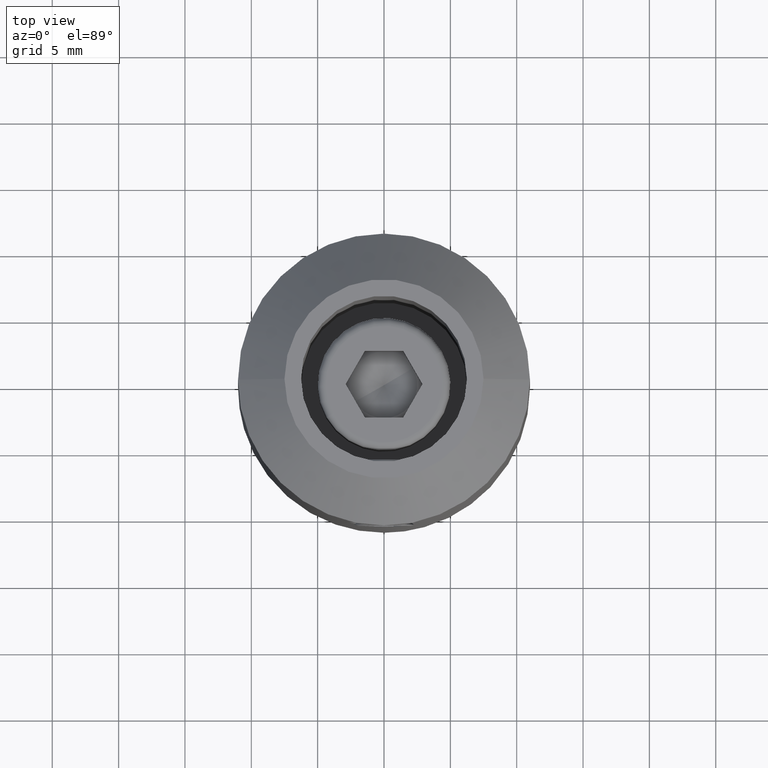
[diagram: clean part render]
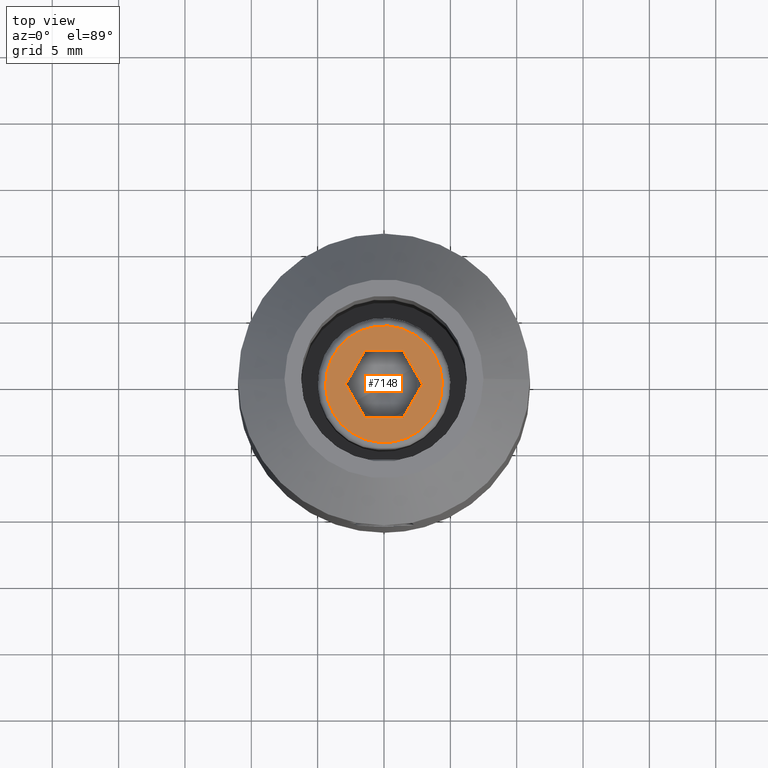
[diagram: same view with one face highlighted and labeled with its STEP entity id]
A machine part, top view. The second image highlights one B-rep face of the part: STEP entity #7148.
In plain terms, the highlighted planar face has unit normal (0, 0, 1).
Its self-contained STEP definition (entity closure, byte-faithful):
#342 = VECTOR ( 'NONE', #849, 1000.000000000000114 ) ;
#704 = ORIENTED_EDGE ( 'NONE', *, *, #20246, .T. ) ;
#849 = DIRECTION ( 'NONE',  ( 0.000000000000000000, -0.5000000000000007772, -0.8660254037844381525 ) ) ;
#1151 = CARTESIAN_POINT ( 'NONE',  ( 0.000000000000000000, -2.898298351331968892, 2.602085213965210642E-15 ) ) ;
#2127 = VERTEX_POINT ( 'NONE', #8614 ) ;
#2130 = VERTEX_POINT ( 'NONE', #11797 ) ;
#2936 = CARTESIAN_POINT ( 'NONE',  ( 0.000000000000000000, 0.000000000000000000, 0.000000000000000000 ) ) ;
#3158 = EDGE_LOOP ( 'NONE', ( #19856, #16531, #4524, #704, #18686, #7302 ) ) ;
#3166 = CARTESIAN_POINT ( 'NONE',  ( 0.000000000000000000, -9.281464485866309625E-15, 4.400000000000054534 ) ) ;
#3989 = EDGE_CURVE ( 'NONE', #16485, #20602, #8924, .T. ) ;
#4524 = ORIENTED_EDGE ( 'NONE', *, *, #9858, .T. ) ;
#4615 = AXIS2_PLACEMENT_3D ( 'NONE', #5003, #4926, #16569 ) ;
#4618 = EDGE_CURVE ( 'NONE', #20602, #12205, #10981, .T. ) ;
#4926 = DIRECTION ( 'NONE',  ( -1.000000000000000000, 0.000000000000000000, 0.000000000000000000 ) ) ;
#5003 = CARTESIAN_POINT ( 'NONE',  ( 0.000000000000000000, 0.000000000000000000, 0.000000000000000000 ) ) ;
#5025 = LINE ( 'NONE', #1151, #10213 ) ;
#5324 = VERTEX_POINT ( 'NONE', #3166 ) ;
#5445 = CIRCLE ( 'NONE', #8396, 4.400000000000054534 ) ;
#5725 = LINE ( 'NONE', #8278, #14023 ) ;
#6980 = DIRECTION ( 'NONE',  ( -1.000000000000000000, 0.000000000000000000, 0.000000000000000000 ) ) ;
#7148 = ADVANCED_FACE ( 'NONE', ( #20919, #8809 ), #19603, .T. ) ;
#7302 = ORIENTED_EDGE ( 'NONE', *, *, #3989, .F. ) ;
#7568 = AXIS2_PLACEMENT_3D ( 'NONE', #20349, #6980, #20070 ) ;
#7760 = ORIENTED_EDGE ( 'NONE', *, *, #7810, .T. ) ;
#7810 = EDGE_CURVE ( 'NONE', #5324, #2130, #5445, .T. ) ;
#8208 = DIRECTION ( 'NONE',  ( 0.000000000000000000, 1.000000000000000000, 1.387778780781426940E-15 ) ) ;
#8278 = CARTESIAN_POINT ( 'NONE',  ( 0.000000000000000000, -1.449149175665980227, 2.510000000000042419 ) ) ;
#8396 = AXIS2_PLACEMENT_3D ( 'NONE', #2936, #11302, #17725 ) ;
#8596 = CARTESIAN_POINT ( 'NONE',  ( 0.000000000000000000, 1.449149175665985556, 2.510000000000045972 ) ) ;
#8614 = CARTESIAN_POINT ( 'NONE',  ( 0.000000000000000000, -2.898298351331968892, 2.602085213965210642E-15 ) ) ;
#8809 = FACE_OUTER_BOUND ( 'NONE', #11331, .T. ) ;
#8924 = LINE ( 'NONE', #20498, #342 ) ;
#8972 = VECTOR ( 'NONE', #21015, 1000.000000000000114 ) ;
#9305 = VECTOR ( 'NONE', #18462, 1000.000000000000114 ) ;
#9331 = EDGE_CURVE ( 'NONE', #2130, #5324, #18859, .T. ) ;
#9502 = LINE ( 'NONE', #15864, #8972 ) ;
#9816 = CARTESIAN_POINT ( 'NONE',  ( 0.000000000000000000, 1.449149175665950917, -2.510000000000003784 ) ) ;
#9858 = EDGE_CURVE ( 'NONE', #13968, #2127, #13155, .T. ) ;
#10213 = VECTOR ( 'NONE', #21210, 1000.000000000000227 ) ;
#10232 = DIRECTION ( 'NONE',  ( 0.000000000000000000, -1.000000000000000000, -1.332267629550170494E-15 ) ) ;
#10712 = VECTOR ( 'NONE', #10232, 1000.000000000000000 ) ;
#10981 = LINE ( 'NONE', #18446, #10712 ) ;
#11302 = DIRECTION ( 'NONE',  ( -1.000000000000000000, 0.000000000000000000, 0.000000000000000000 ) ) ;
#11331 = EDGE_LOOP ( 'NONE', ( #7760, #13903 ) ) ;
#11748 = CARTESIAN_POINT ( 'NONE',  ( 0.000000000000000000, -1.449149175665980227, 2.510000000000042419 ) ) ;
#11797 = CARTESIAN_POINT ( 'NONE',  ( 0.000000000000000000, 1.048987560550177941E-14, -4.400000000000000355 ) ) ;
#12004 = EDGE_CURVE ( 'NONE', #16485, #14811, #9502, .T. ) ;
#12205 = VERTEX_POINT ( 'NONE', #18183 ) ;
#13155 = LINE ( 'NONE', #15145, #9305 ) ;
#13903 = ORIENTED_EDGE ( 'NONE', *, *, #9331, .T. ) ;
#13968 = VERTEX_POINT ( 'NONE', #11748 ) ;
#14023 = VECTOR ( 'NONE', #8208, 1000.000000000000000 ) ;
#14175 = CARTESIAN_POINT ( 'NONE',  ( 0.000000000000000000, 2.898298351331957790, -2.385244779468109755E-15 ) ) ;
#14811 = VERTEX_POINT ( 'NONE', #8596 ) ;
#15145 = CARTESIAN_POINT ( 'NONE',  ( 0.000000000000000000, -1.449149175665980227, 2.510000000000042419 ) ) ;
#15864 = CARTESIAN_POINT ( 'NONE',  ( 0.000000000000000000, 2.898298351331957790, -2.385244779468109755E-15 ) ) ;
#16485 = VERTEX_POINT ( 'NONE', #14175 ) ;
#16531 = ORIENTED_EDGE ( 'NONE', *, *, #16845, .F. ) ;
#16569 = DIRECTION ( 'NONE',  ( 0.000000000000000000, -2.109423746787771394E-15, 1.000000000000000000 ) ) ;
#16845 = EDGE_CURVE ( 'NONE', #13968, #14811, #5725, .T. ) ;
#17725 = DIRECTION ( 'NONE',  ( 0.000000000000000000, -2.109423746787771394E-15, 1.000000000000000000 ) ) ;
#18183 = CARTESIAN_POINT ( 'NONE',  ( 0.000000000000000000, -1.449149175665998657, -2.510000000000045972 ) ) ;
#18446 = CARTESIAN_POINT ( 'NONE',  ( 0.000000000000000000, 1.449149175665950917, -2.510000000000003784 ) ) ;
#18462 = DIRECTION ( 'NONE',  ( -0.000000000000000000, -0.5000000000000007772, -0.8660254037844381525 ) ) ;
#18686 = ORIENTED_EDGE ( 'NONE', *, *, #4618, .F. ) ;
#18859 = CIRCLE ( 'NONE', #7568, 4.400000000000054534 ) ;
#19603 = PLANE ( 'NONE',  #4615 ) ;
#19856 = ORIENTED_EDGE ( 'NONE', *, *, #12004, .T. ) ;
#20070 = DIRECTION ( 'NONE',  ( 0.000000000000000000, -2.109423746787771394E-15, 1.000000000000000000 ) ) ;
#20246 = EDGE_CURVE ( 'NONE', #2127, #12205, #5025, .T. ) ;
#20349 = CARTESIAN_POINT ( 'NONE',  ( 0.000000000000000000, 0.000000000000000000, 0.000000000000000000 ) ) ;
#20498 = CARTESIAN_POINT ( 'NONE',  ( 0.000000000000000000, 2.898298351331957790, -2.385244779468109755E-15 ) ) ;
#20602 = VERTEX_POINT ( 'NONE', #9816 ) ;
#20919 = FACE_BOUND ( 'NONE', #3158, .T. ) ;
#21015 = DIRECTION ( 'NONE',  ( 0.000000000000000000, -0.4999999999999965028, 0.8660254037844407060 ) ) ;
#21210 = DIRECTION ( 'NONE',  ( -0.000000000000000000, 0.4999999999999963363, -0.8660254037844407060 ) ) ;